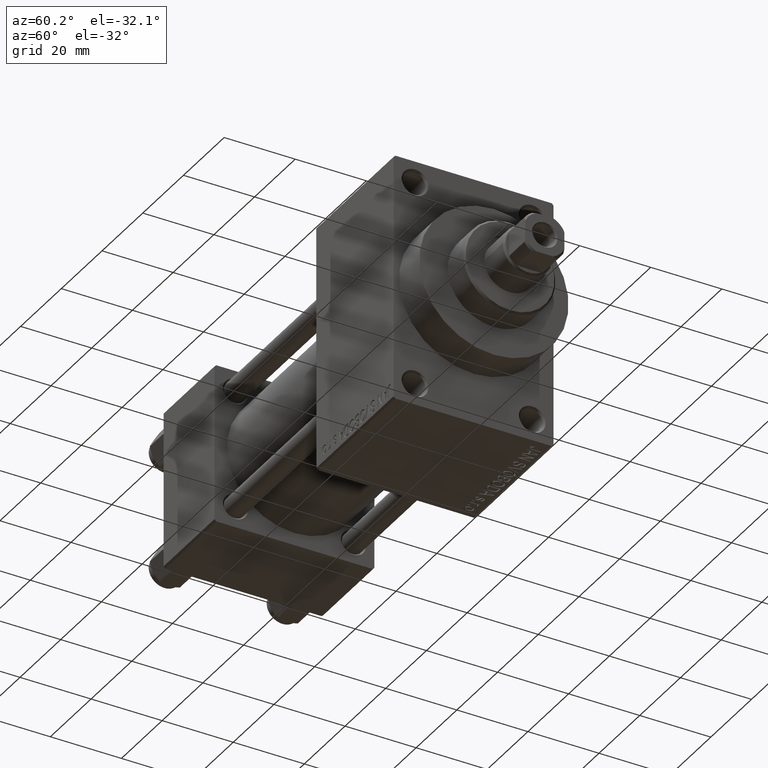
[diagram: clean part render]
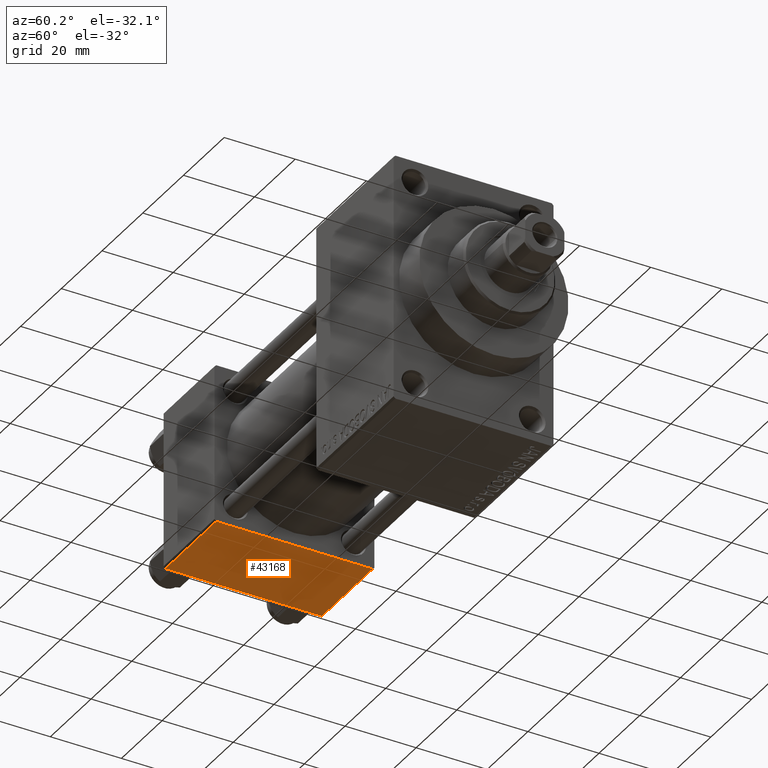
[diagram: same view with one face highlighted and labeled with its STEP entity id]
A machine part, auxiliary view. The second image highlights one B-rep face of the part: STEP entity #43168.
In plain terms, the highlighted planar face has unit normal (0, 0, -1).
Its self-contained STEP definition (entity closure, byte-faithful):
#386 = AXIS2_PLACEMENT_3D ( 'NONE', #2474, #34425, #38720 ) ;
#1299 = ORIENTED_EDGE ( 'NONE', *, *, #23191, .F. ) ;
#1907 = VECTOR ( 'NONE', #29038, 1000.000000000000000 ) ;
#2474 = CARTESIAN_POINT ( 'NONE',  ( 25.00000000000000000, 22.50000000000000000, -22.49999999999999645 ) ) ;
#4838 = LINE ( 'NONE', #31278, #5777 ) ;
#5525 = VERTEX_POINT ( 'NONE', #32175 ) ;
#5777 = VECTOR ( 'NONE', #41539, 1000.000000000000000 ) ;
#7303 = VERTEX_POINT ( 'NONE', #35383 ) ;
#8133 = ORIENTED_EDGE ( 'NONE', *, *, #45012, .T. ) ;
#11871 = LINE ( 'NONE', #32844, #1907 ) ;
#12961 = ORIENTED_EDGE ( 'NONE', *, *, #22205, .T. ) ;
#15844 = VERTEX_POINT ( 'NONE', #33570 ) ;
#20247 = VECTOR ( 'NONE', #43055, 1000.000000000000000 ) ;
#21160 = DIRECTION ( 'NONE',  ( 1.000000000000000000, 0.000000000000000000, 0.000000000000000000 ) ) ;
#22205 = EDGE_CURVE ( 'NONE', #23845, #5525, #31912, .T. ) ;
#23191 = EDGE_CURVE ( 'NONE', #23845, #15844, #11871, .T. ) ;
#23845 = VERTEX_POINT ( 'NONE', #45502 ) ;
#24150 = PLANE ( 'NONE',  #386 ) ;
#24690 = LINE ( 'NONE', #42593, #20247 ) ;
#27738 = FACE_OUTER_BOUND ( 'NONE', #44352, .T. ) ;
#29038 = DIRECTION ( 'NONE',  ( 0.000000000000000000, -1.000000000000000000, -2.312964634635742957E-16 ) ) ;
#29731 = EDGE_CURVE ( 'NONE', #7303, #15844, #4838, .T. ) ;
#31278 = CARTESIAN_POINT ( 'NONE',  ( 0.000000000000000000, -21.99999999999998579, -22.50000000000000711 ) ) ;
#31912 = LINE ( 'NONE', #38607, #40694 ) ;
#32175 = CARTESIAN_POINT ( 'NONE',  ( 25.00000000000000000, 21.99999999999999289, -22.49999999999999645 ) ) ;
#32844 = CARTESIAN_POINT ( 'NONE',  ( 0.000000000000000000, 22.50000000000000000, -22.49999999999999645 ) ) ;
#33570 = CARTESIAN_POINT ( 'NONE',  ( 0.000000000000000000, -21.99999999999997158, -22.50000000000000711 ) ) ;
#34425 = DIRECTION ( 'NONE',  ( 0.000000000000000000, 2.312964634635742957E-16, -1.000000000000000000 ) ) ;
#35383 = CARTESIAN_POINT ( 'NONE',  ( 25.00000000000000000, -21.99999999999997158, -22.50000000000000711 ) ) ;
#38607 = CARTESIAN_POINT ( 'NONE',  ( 25.00000000000000000, 21.99999999999999289, -22.49999999999999645 ) ) ;
#38720 = DIRECTION ( 'NONE',  ( 0.000000000000000000, 1.000000000000000000, 2.312964634635742957E-16 ) ) ;
#40694 = VECTOR ( 'NONE', #21160, 1000.000000000000000 ) ;
#41539 = DIRECTION ( 'NONE',  ( -1.000000000000000000, 0.000000000000000000, 0.000000000000000000 ) ) ;
#42593 = CARTESIAN_POINT ( 'NONE',  ( 25.00000000000000000, 22.50000000000000000, -22.49999999999999645 ) ) ;
#42691 = ORIENTED_EDGE ( 'NONE', *, *, #29731, .T. ) ;
#43055 = DIRECTION ( 'NONE',  ( 0.000000000000000000, -1.000000000000000000, -2.312964634635742957E-16 ) ) ;
#43168 = ADVANCED_FACE ( 'NONE', ( #27738 ), #24150, .T. ) ;
#44352 = EDGE_LOOP ( 'NONE', ( #1299, #12961, #8133, #42691 ) ) ;
#45012 = EDGE_CURVE ( 'NONE', #5525, #7303, #24690, .T. ) ;
#45502 = CARTESIAN_POINT ( 'NONE',  ( 0.000000000000000000, 21.99999999999999289, -22.49999999999999645 ) ) ;